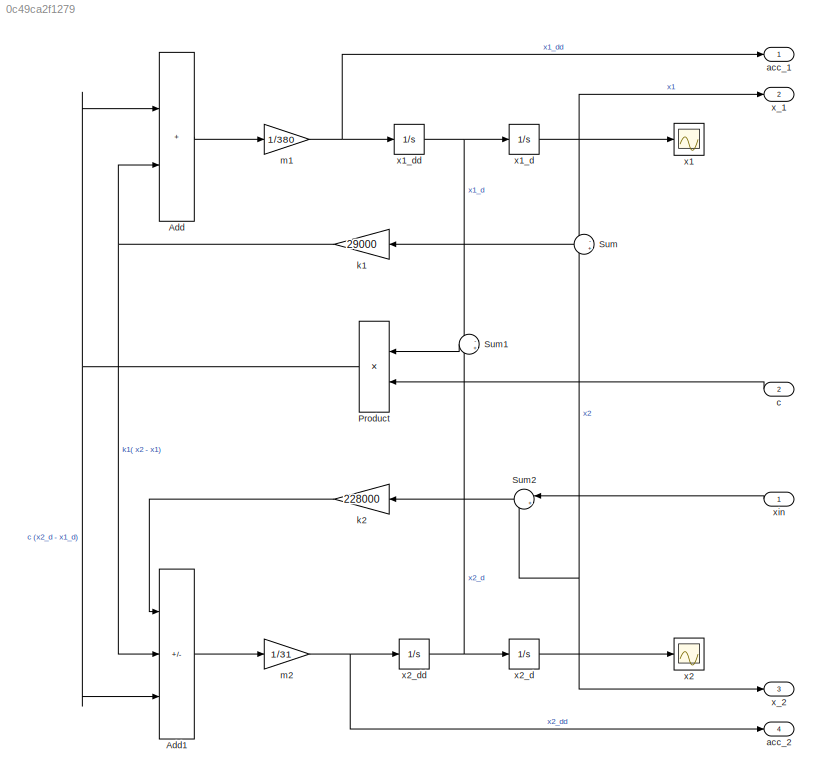
MODEL slx_0c49ca2f1279
KIND model
CONFIG AbsTol = auto
CONFIG EnableMultiTasking = off
CONFIG FixedStep = auto
CONFIG MaxStep = auto
CONFIG MinStep = auto
CONFIG RelTol = 1e-3
CONFIG SampleTimeConstraint = Unconstrained
CONFIG SolverName = VariableStepAuto
CONFIG StartTime = 0.0
CONFIG StopTime = 10.0
BLOCK [Sum] Add
  IconShape = rectangular
  Ports = [2, 1]
BLOCK [Sum] Add1
  IconShape = rectangular
  Inputs = +--
  Ports = [3, 1]
BLOCK [Product] Product
  NameLocation = top
  Ports = [2, 1]
BLOCK [Sum] Sum
  Inputs = -+
  NameLocation = top
  Ports = [2, 1]
BLOCK [Sum] Sum1
  Inputs = -+
  NameLocation = top
  Ports = [2, 1]
BLOCK [Sum] Sum2
  Inputs = |+-
  NameLocation = top
  Ports = [2, 1]
BLOCK [Outport] acc_1
  OutDataTypeStr = double
BLOCK [Outport] acc_2
  OutDataTypeStr = double
  Port = 4
BLOCK [Inport] c
  NameLocation = top
  OutDataTypeStr = boolean
  Port = 2
BLOCK [Gain] k1
  Gain = 29000
  NameLocation = top
BLOCK [Gain] k2
  Gain = 228000
  NameLocation = top
BLOCK [Gain] m1
  Gain = 1/380
BLOCK [Gain] m2
  Gain = 1/31
BLOCK [Scope] x1
  Floating = off
  NumInputPorts = 1
  Ports = [1]
  ScopeSpecificationString = Simulink.scopes.TimeScopeBlockCfg('CurrentConfiguration', extmgr.ConfigurationSet(extmgr.Configuration('Core','General UI',true),extmgr.Configuration('Core','Source UI',true),extmgr.Configuration('Sources','WiredSimulink',true,'DataLoggingVariableName','ScopeData1'),extmgr.Configuration('Visuals','Time Domain',true),extmgr.Configuration('Tools','Plot Navigation',true),extmgr.Configuration('Tools',...<+58ch>
BLOCK [Integrator] x1_d
  Ports = [1, 1]
BLOCK [Integrator] x1_dd
  Ports = [1, 1]
BLOCK [Scope] x2
  Floating = off
  NumInputPorts = 1
  Ports = [1]
  ScopeSpecificationString = Simulink.scopes.TimeScopeBlockCfg('CurrentConfiguration', extmgr.ConfigurationSet(extmgr.Configuration('Core','General UI',true),extmgr.Configuration('Core','Source UI',true),extmgr.Configuration('Sources','WiredSimulink',true),extmgr.Configuration('Visuals','Time Domain',true),extmgr.Configuration('Tools','Plot Navigation',true),extmgr.Configuration('Tools','Measurements',true)),'Version','2021b'...<+1ch>
BLOCK [Integrator] x2_d
  Ports = [1, 1]
BLOCK [Integrator] x2_dd
  Ports = [1, 1]
BLOCK [Outport] x_1
  OutDataTypeStr = double
  Port = 2
BLOCK [Outport] x_2
  OutDataTypeStr = double
  Port = 3
BLOCK [Inport] xin
  NameLocation = top
  OutDataTypeStr = double
  OutMax = 0.2
  OutMin = -0.2
LINE Add1:1 -> m2:1
LINE Add:1 -> m1:1
NET Product:1 -> Add1:3, Add:1
LINE Sum1:1 -> Product:1
LINE Sum2:1 -> k2:1
LINE Sum:1 -> k1:1
LINE c:1 -> Product:2
NET k1:1 -> Add1:2, Add:2
LINE k2:1 -> Add1:1
NET m1:1 -> acc_1:1, x1_dd:1
NET m2:1 -> acc_2:1, x2_dd:1
NET x1_d:1 -> Sum:1, x1:1, x_1:1
NET x1_dd:1 -> Sum1:1, x1_d:1
NET x2_d:1 -> Sum2:2, Sum:2, x2:1, x_2:1
NET x2_dd:1 -> Sum1:2, x2_d:1
LINE xin:1 -> Sum2:1
note: NET lines group one-source signal fan-out (src -> all destinations, sorted); 1:1 wires keep LINE
